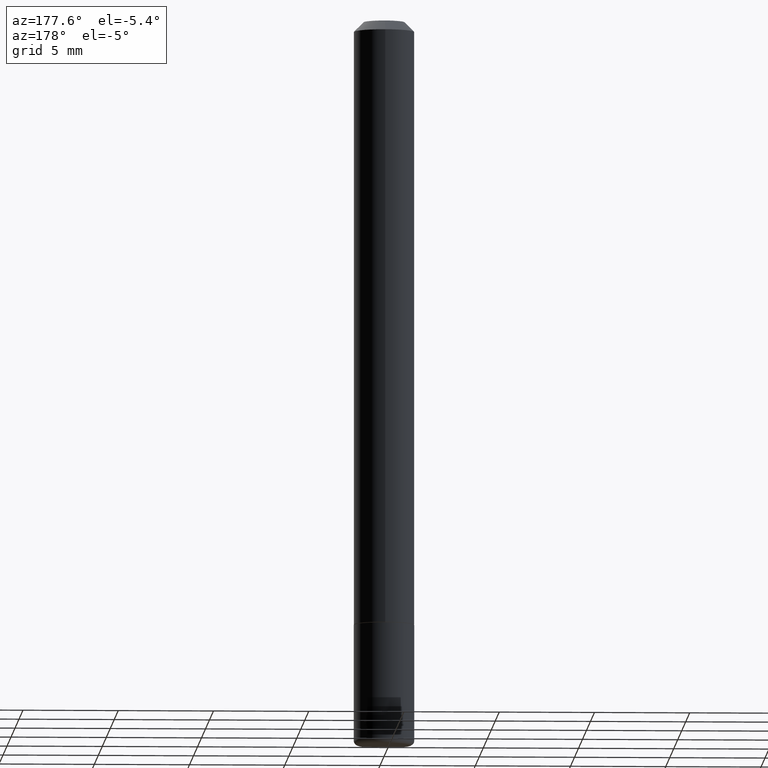
[diagram: clean part render]
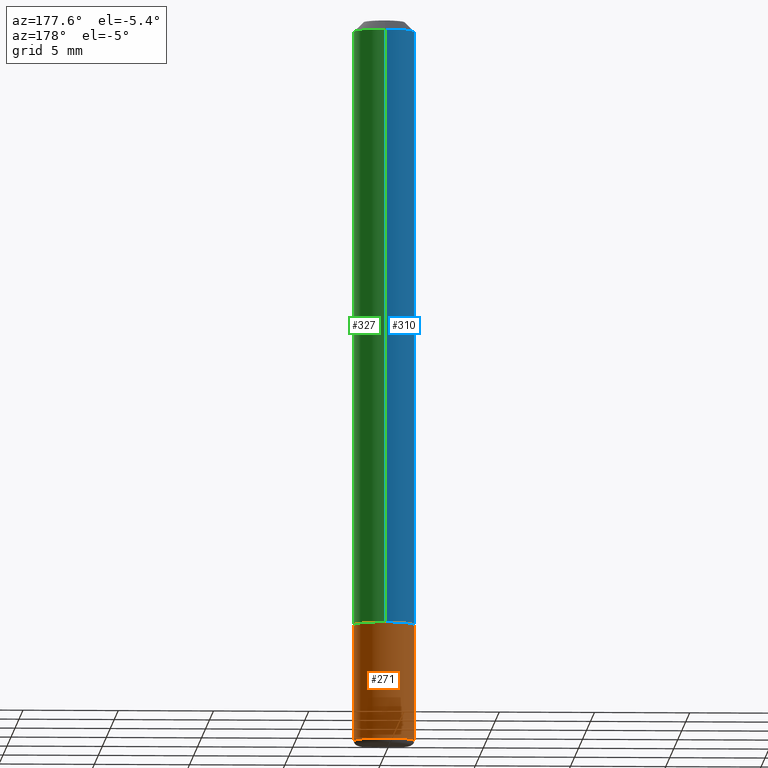
[diagram: same view with three faces highlighted in distinct colors, each labeled with its STEP entity id]
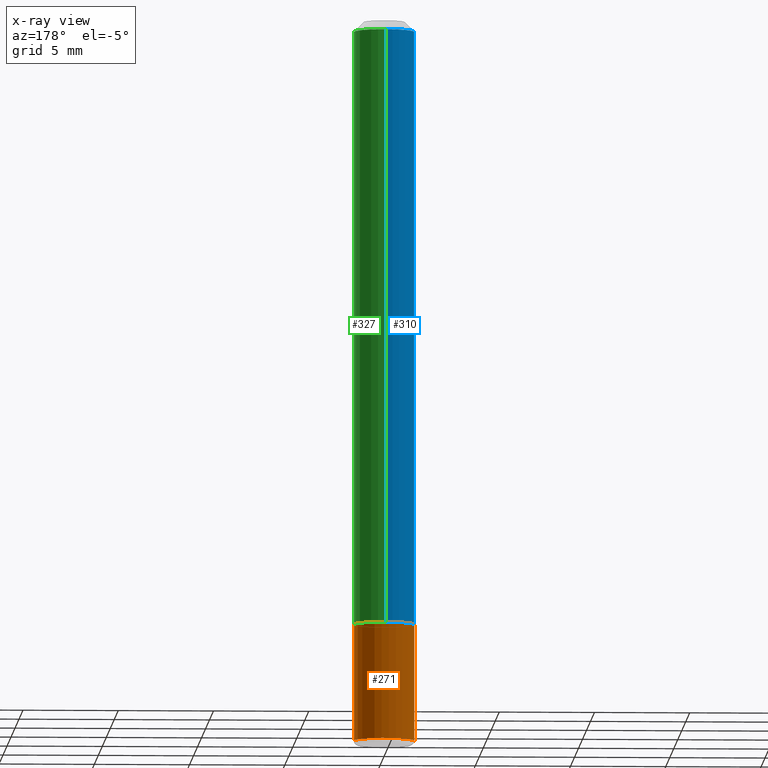
[diagram: x-ray of the same camera — body ghosted, the three highlighted faces saturated]
A machine part, auxiliary view with three faces highlighted in distinct colors.
The next image is the same camera in x-ray (body ghosted, the three faces saturated) — at least one of them is partly hidden behind the body in this view.
Their STEP definitions:

[orange] entity #271 — the highlighted cylindrical surface (edge-blend (fillet) strip) has radius 1.5875 mm, axis along (-0, 0, 1).
#2 = EDGE_CURVE ( 'NONE', #137, #171, #287, .T. ) ;
#25 = CARTESIAN_POINT ( 'NONE',  ( 0.000000000000000000, 0.000000000000000000, 0.000000000000000000 ) ) ;
#35 = EDGE_CURVE ( 'NONE', #137, #275, #149, .T. ) ;
#53 = CARTESIAN_POINT ( 'NONE',  ( -0.06250000000000001388, -4.339240224365048067E-15, -1.250000000000000222 ) ) ;
#62 = DIRECTION ( 'NONE',  ( -2.445468806185136877E-29, 3.491481338843145188E-15, 1.000000000000000000 ) ) ;
#75 = VECTOR ( 'NONE', #127, 39.37007874015748143 ) ;
#90 = AXIS2_PLACEMENT_3D ( 'NONE', #292, #134, #263 ) ;
#127 = DIRECTION ( 'NONE',  ( -2.445468806185136877E-29, 3.491481338843145188E-15, 1.000000000000000000 ) ) ;
#134 = DIRECTION ( 'NONE',  ( -2.445468806185136597E-29, 3.491481338843145583E-15, 1.000000000000000000 ) ) ;
#137 = VERTEX_POINT ( 'NONE', #366 ) ;
#141 = FACE_OUTER_BOUND ( 'NONE', #332, .T. ) ;
#148 = DIRECTION ( 'NONE',  ( -2.445468806185136597E-29, 3.491481338843145583E-15, 1.000000000000000000 ) ) ;
#149 = CIRCLE ( 'NONE', #404, 0.06250000000000001388 ) ;
#151 = AXIS2_PLACEMENT_3D ( 'NONE', #25, #148, #407 ) ;
#160 = CARTESIAN_POINT ( 'NONE',  ( 0.06250000000000001388, -4.364351673553918173E-16, 3.047610484872460571E-30 ) ) ;
#171 = VERTEX_POINT ( 'NONE', #309 ) ;
#179 = ORIENTED_EDGE ( 'NONE', *, *, #35, .T. ) ;
#219 = CARTESIAN_POINT ( 'NONE',  ( -0.06250000000000005551, -4.758217985026225489E-15, -1.490000000000000213 ) ) ;
#251 = CARTESIAN_POINT ( 'NONE',  ( -0.06250000000000001388, 4.440892098500627148E-16, -3.074334431409317165E-30 ) ) ;
#263 = DIRECTION ( 'NONE',  ( 1.000000000000000000, -6.982962677686269077E-15, 0.000000000000000000 ) ) ;
#271 = ADVANCED_FACE ( 'NONE', ( #141 ), #304, .T. ) ;
#275 = VERTEX_POINT ( 'NONE', #219 ) ;
#283 = CIRCLE ( 'NONE', #90, 0.06250000000000001388 ) ;
#286 = DIRECTION ( 'NONE',  ( 1.000000000000000000, -6.982962677686261189E-15, 0.000000000000000000 ) ) ;
#287 = LINE ( 'NONE', #160, #75 ) ;
#292 = CARTESIAN_POINT ( 'NONE',  ( 3.056836007731421306E-29, -4.364351673553933260E-15, -1.250000000000000222 ) ) ;
#304 = CYLINDRICAL_SURFACE ( 'NONE', #151, 0.06250000000000001388 ) ;
#308 = VERTEX_POINT ( 'NONE', #53 ) ;
#309 = CARTESIAN_POINT ( 'NONE',  ( 0.06250000000000001388, -4.800786840909324930E-15, -1.250000000000000222 ) ) ;
#319 = ORIENTED_EDGE ( 'NONE', *, *, #2, .F. ) ;
#320 = EDGE_CURVE ( 'NONE', #275, #308, #408, .T. ) ;
#332 = EDGE_LOOP ( 'NONE', ( #179, #416, #394, #319 ) ) ;
#366 = CARTESIAN_POINT ( 'NONE',  ( 0.06250000000000005551, -5.638742362231678986E-15, -1.490000000000000213 ) ) ;
#382 = VECTOR ( 'NONE', #62, 39.37007874015748143 ) ;
#383 = CARTESIAN_POINT ( 'NONE',  ( 3.643748521215853910E-29, -5.202307194876288105E-15, -1.490000000000000213 ) ) ;
#390 = DIRECTION ( 'NONE',  ( -2.445468806185136597E-29, 3.491481338843145583E-15, 1.000000000000000000 ) ) ;
#394 = ORIENTED_EDGE ( 'NONE', *, *, #414, .F. ) ;
#404 = AXIS2_PLACEMENT_3D ( 'NONE', #383, #390, #286 ) ;
#407 = DIRECTION ( 'NONE',  ( 1.000000000000000000, -6.982962677686267499E-15, 4.876176775795935793E-29 ) ) ;
#408 = LINE ( 'NONE', #251, #382 ) ;
#414 = EDGE_CURVE ( 'NONE', #171, #308, #283, .T. ) ;
#416 = ORIENTED_EDGE ( 'NONE', *, *, #320, .T. ) ;

[blue] entity #310 — the highlighted cylindrical surface (edge-blend (fillet) strip) has radius 1.5875 mm, axis along (-0, 0, 1).
#7 = DIRECTION ( 'NONE',  ( -2.463890923374057666E-29, 3.465099818506815949E-15, 1.000000000000000000 ) ) ;
#9 = ORIENTED_EDGE ( 'NONE', *, *, #88, .T. ) ;
#16 = VERTEX_POINT ( 'NONE', #264 ) ;
#20 = VERTEX_POINT ( 'NONE', #328 ) ;
#21 = AXIS2_PLACEMENT_3D ( 'NONE', #379, #100, #163 ) ;
#27 = AXIS2_PLACEMENT_3D ( 'NONE', #290, #7, #77 ) ;
#30 = DIRECTION ( 'NONE',  ( -2.463890923374057666E-29, 3.465099818506815949E-15, 1.000000000000000000 ) ) ;
#77 = DIRECTION ( 'NONE',  ( -6.982962677686265922E-15, -1.000000000000000000, 3.483106191921934765E-15 ) ) ;
#88 = EDGE_CURVE ( 'NONE', #306, #216, #370, .T. ) ;
#100 = DIRECTION ( 'NONE',  ( -2.463890923374057666E-29, 3.465099818506815949E-15, 1.000000000000000000 ) ) ;
#102 = EDGE_CURVE ( 'NONE', #306, #16, #357, .T. ) ;
#110 = VECTOR ( 'NONE', #412, 39.37007874015748143 ) ;
#114 = CARTESIAN_POINT ( 'NONE',  ( 0.000000000000000000, 0.000000000000000000, 0.000000000000000000 ) ) ;
#126 = EDGE_CURVE ( 'NONE', #16, #20, #175, .T. ) ;
#147 = EDGE_CURVE ( 'NONE', #216, #20, #184, .T. ) ;
#150 = CARTESIAN_POINT ( 'NONE',  ( 4.440892098500787878E-16, 0.06249999999999578809, -1.249000000000000554 ) ) ;
#163 = DIRECTION ( 'NONE',  ( -6.982962677686265133E-15, -1.000000000000000000, 4.370956789862812472E-15 ) ) ;
#175 = CIRCLE ( 'NONE', #27, 0.06250000000000001388 ) ;
#184 = LINE ( 'NONE', #217, #110 ) ;
#189 = CARTESIAN_POINT ( 'NONE',  ( 4.440892098500630106E-16, 0.06250000000000006939, -2.165687386566762434E-16 ) ) ;
#201 = ORIENTED_EDGE ( 'NONE', *, *, #102, .F. ) ;
#209 = VECTOR ( 'NONE', #377, 39.37007874015748143 ) ;
#216 = VERTEX_POINT ( 'NONE', #291 ) ;
#217 = CARTESIAN_POINT ( 'NONE',  ( -4.364351673553921131E-16, -0.06250000000000006939, 2.165687386566762434E-16 ) ) ;
#224 = EDGE_LOOP ( 'NONE', ( #201, #9, #329, #242 ) ) ;
#242 = ORIENTED_EDGE ( 'NONE', *, *, #126, .F. ) ;
#264 = CARTESIAN_POINT ( 'NONE',  ( 4.364351673553922118E-16, 0.06249999999999995143, -0.02000000000000028491 ) ) ;
#290 = CARTESIAN_POINT ( 'NONE',  ( 4.927781846748132603E-31, -6.930199637013654924E-17, -0.02000000000000006981 ) ) ;
#291 = CARTESIAN_POINT ( 'NONE',  ( -4.364351673553616927E-16, -0.06250000000000444089, -1.248999999999999888 ) ) ;
#300 = CYLINDRICAL_SURFACE ( 'NONE', #326, 0.06250000000000006939 ) ;
#306 = VERTEX_POINT ( 'NONE', #150 ) ;
#310 = ADVANCED_FACE ( 'NONE', ( #397 ), #300, .T. ) ;
#326 = AXIS2_PLACEMENT_3D ( 'NONE', #114, #30, #349 ) ;
#328 = CARTESIAN_POINT ( 'NONE',  ( -4.287811248607203282E-16, -0.06250000000000008327, -0.01999999999999985123 ) ) ;
#329 = ORIENTED_EDGE ( 'NONE', *, *, #147, .T. ) ;
#349 = DIRECTION ( 'NONE',  ( -6.982962677686265922E-15, -1.000000000000000000, 3.465099818506815949E-15 ) ) ;
#357 = LINE ( 'NONE', #189, #209 ) ;
#370 = CIRCLE ( 'NONE', #21, 0.06250000000000012490 ) ;
#377 = DIRECTION ( 'NONE',  ( -2.463890923374057666E-29, 3.465099818506815949E-15, 1.000000000000000000 ) ) ;
#379 = CARTESIAN_POINT ( 'NONE',  ( 3.077399763294198572E-29, -4.327909673315014220E-15, -1.249000000000000332 ) ) ;
#397 = FACE_OUTER_BOUND ( 'NONE', #224, .T. ) ;
#412 = DIRECTION ( 'NONE',  ( -2.463890923374057666E-29, 3.465099818506815949E-15, 1.000000000000000000 ) ) ;

[green] entity #327 — the highlighted cylindrical surface (edge-blend (fillet) strip) has radius 1.5875 mm, axis along (-0, 0, 1).
#10 = CIRCLE ( 'NONE', #266, 0.06250000000000012490 ) ;
#16 = VERTEX_POINT ( 'NONE', #264 ) ;
#20 = VERTEX_POINT ( 'NONE', #328 ) ;
#93 = DIRECTION ( 'NONE',  ( -6.982962677686265133E-15, -1.000000000000000000, 4.370956789862812472E-15 ) ) ;
#95 = ORIENTED_EDGE ( 'NONE', *, *, #102, .T. ) ;
#99 = EDGE_CURVE ( 'NONE', #20, #16, #243, .T. ) ;
#102 = EDGE_CURVE ( 'NONE', #306, #16, #357, .T. ) ;
#103 = CARTESIAN_POINT ( 'NONE',  ( 4.927781846748132603E-31, -6.930199637013654924E-17, -0.02000000000000006981 ) ) ;
#108 = ORIENTED_EDGE ( 'NONE', *, *, #99, .F. ) ;
#110 = VECTOR ( 'NONE', #412, 39.37007874015748143 ) ;
#121 = CARTESIAN_POINT ( 'NONE',  ( 0.000000000000000000, 0.000000000000000000, 0.000000000000000000 ) ) ;
#133 = DIRECTION ( 'NONE',  ( -6.982962677686265922E-15, -1.000000000000000000, 3.483106191921934765E-15 ) ) ;
#147 = EDGE_CURVE ( 'NONE', #216, #20, #184, .T. ) ;
#150 = CARTESIAN_POINT ( 'NONE',  ( 4.440892098500787878E-16, 0.06249999999999578809, -1.249000000000000554 ) ) ;
#164 = DIRECTION ( 'NONE',  ( -2.463890923374057666E-29, 3.465099818506815949E-15, 1.000000000000000000 ) ) ;
#166 = EDGE_LOOP ( 'NONE', ( #296, #95, #108, #207 ) ) ;
#174 = EDGE_CURVE ( 'NONE', #216, #306, #10, .T. ) ;
#184 = LINE ( 'NONE', #217, #110 ) ;
#189 = CARTESIAN_POINT ( 'NONE',  ( 4.440892098500630106E-16, 0.06250000000000006939, -2.165687386566762434E-16 ) ) ;
#207 = ORIENTED_EDGE ( 'NONE', *, *, #147, .F. ) ;
#209 = VECTOR ( 'NONE', #377, 39.37007874015748143 ) ;
#216 = VERTEX_POINT ( 'NONE', #291 ) ;
#217 = CARTESIAN_POINT ( 'NONE',  ( -4.364351673553921131E-16, -0.06250000000000006939, 2.165687386566762434E-16 ) ) ;
#221 = AXIS2_PLACEMENT_3D ( 'NONE', #121, #253, #311 ) ;
#243 = CIRCLE ( 'NONE', #391, 0.06250000000000001388 ) ;
#253 = DIRECTION ( 'NONE',  ( -2.463890923374057666E-29, 3.465099818506815949E-15, 1.000000000000000000 ) ) ;
#264 = CARTESIAN_POINT ( 'NONE',  ( 4.364351673553922118E-16, 0.06249999999999995143, -0.02000000000000028491 ) ) ;
#266 = AXIS2_PLACEMENT_3D ( 'NONE', #403, #406, #93 ) ;
#291 = CARTESIAN_POINT ( 'NONE',  ( -4.364351673553616927E-16, -0.06250000000000444089, -1.248999999999999888 ) ) ;
#296 = ORIENTED_EDGE ( 'NONE', *, *, #174, .T. ) ;
#306 = VERTEX_POINT ( 'NONE', #150 ) ;
#307 = FACE_OUTER_BOUND ( 'NONE', #166, .T. ) ;
#311 = DIRECTION ( 'NONE',  ( -6.982962677686265922E-15, -1.000000000000000000, 3.465099818506815949E-15 ) ) ;
#327 = ADVANCED_FACE ( 'NONE', ( #307 ), #374, .T. ) ;
#328 = CARTESIAN_POINT ( 'NONE',  ( -4.287811248607203282E-16, -0.06250000000000008327, -0.01999999999999985123 ) ) ;
#357 = LINE ( 'NONE', #189, #209 ) ;
#374 = CYLINDRICAL_SURFACE ( 'NONE', #221, 0.06250000000000006939 ) ;
#377 = DIRECTION ( 'NONE',  ( -2.463890923374057666E-29, 3.465099818506815949E-15, 1.000000000000000000 ) ) ;
#391 = AXIS2_PLACEMENT_3D ( 'NONE', #103, #164, #133 ) ;
#403 = CARTESIAN_POINT ( 'NONE',  ( 3.077399763294198572E-29, -4.327909673315014220E-15, -1.249000000000000332 ) ) ;
#406 = DIRECTION ( 'NONE',  ( -2.463890923374057666E-29, 3.465099818506815949E-15, 1.000000000000000000 ) ) ;
#412 = DIRECTION ( 'NONE',  ( -2.463890923374057666E-29, 3.465099818506815949E-15, 1.000000000000000000 ) ) ;